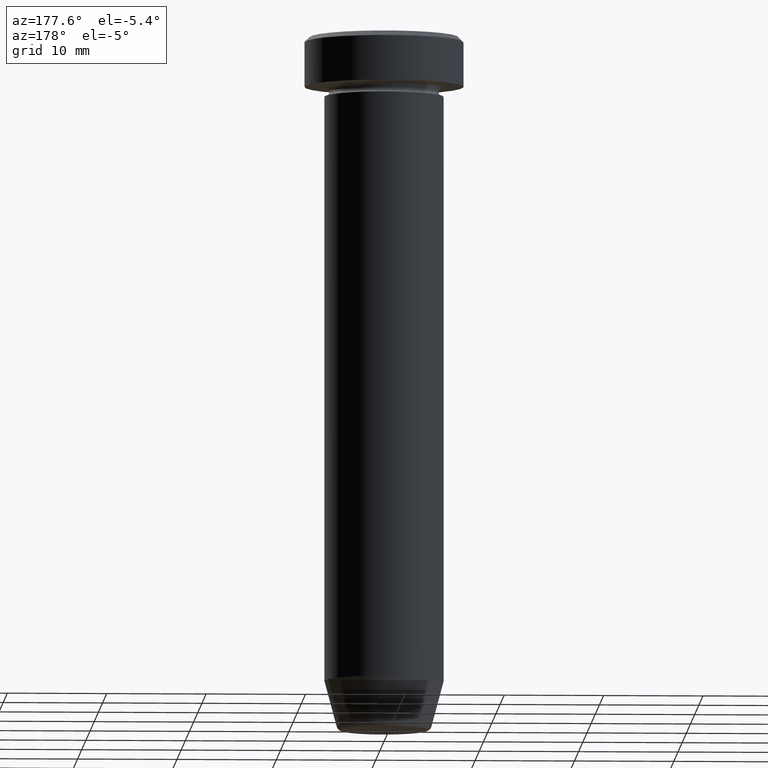
[diagram: clean part render]
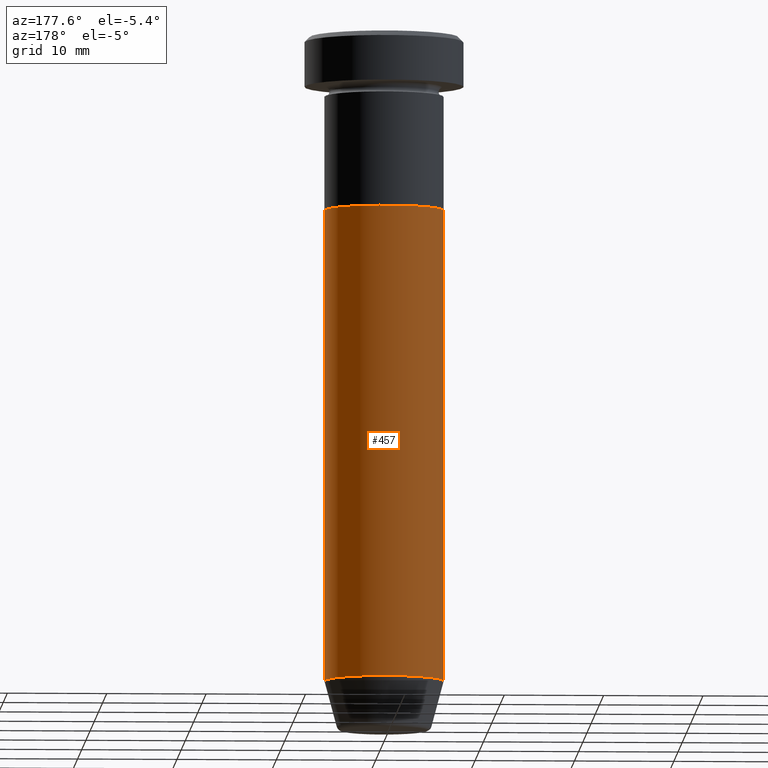
[diagram: same view with one face highlighted and labeled with its STEP entity id]
A machine part, auxiliary view. The second image highlights one B-rep face of the part: STEP entity #457.
In plain terms, the highlighted cylindrical surface (partial cylindrical patch) has radius 6 mm, axis along (-0, -0, 1).
Its self-contained STEP definition (entity closure, byte-faithful):
#25 = CARTESIAN_POINT ( 'NONE',  ( 0.000000000000000000, 0.000000000000000000, -65.00000000000000000 ) ) ;
#43 = DIRECTION ( 'NONE',  ( -0.000000000000000000, -0.000000000000000000, 1.000000000000000000 ) ) ;
#57 = CARTESIAN_POINT ( 'NONE',  ( 6.000000000000000000, 0.000000000000000000, -17.50000000000000000 ) ) ;
#65 = EDGE_CURVE ( 'NONE', #257, #521, #460, .T. ) ;
#69 = CARTESIAN_POINT ( 'NONE',  ( -6.000000000000000000, 7.347880794884119736E-16, 0.000000000000000000 ) ) ;
#107 = DIRECTION ( 'NONE',  ( -0.000000000000000000, -0.000000000000000000, 1.000000000000000000 ) ) ;
#112 = VECTOR ( 'NONE', #249, 1000.000000000000000 ) ;
#114 = DIRECTION ( 'NONE',  ( 1.000000000000000000, 0.000000000000000000, 0.000000000000000000 ) ) ;
#122 = LINE ( 'NONE', #125, #469 ) ;
#125 = CARTESIAN_POINT ( 'NONE',  ( 6.000000000000000000, 0.000000000000000000, 0.000000000000000000 ) ) ;
#142 = CARTESIAN_POINT ( 'NONE',  ( 0.000000000000000000, 0.000000000000000000, 0.000000000000000000 ) ) ;
#181 = FACE_OUTER_BOUND ( 'NONE', #306, .T. ) ;
#217 = DIRECTION ( 'NONE',  ( -0.000000000000000000, -0.000000000000000000, 1.000000000000000000 ) ) ;
#227 = EDGE_CURVE ( 'NONE', #257, #513, #122, .T. ) ;
#249 = DIRECTION ( 'NONE',  ( -0.000000000000000000, -0.000000000000000000, 1.000000000000000000 ) ) ;
#257 = VERTEX_POINT ( 'NONE', #509 ) ;
#258 = CARTESIAN_POINT ( 'NONE',  ( -6.000000000000000000, 7.347880794884119736E-16, -17.50000000000000000 ) ) ;
#266 = VERTEX_POINT ( 'NONE', #258 ) ;
#306 = EDGE_LOOP ( 'NONE', ( #377, #458, #417, #498 ) ) ;
#326 = AXIS2_PLACEMENT_3D ( 'NONE', #25, #107, #114 ) ;
#372 = CYLINDRICAL_SURFACE ( 'NONE', #552, 6.000000000000000000 ) ;
#377 = ORIENTED_EDGE ( 'NONE', *, *, #65, .T. ) ;
#389 = CARTESIAN_POINT ( 'NONE',  ( -6.000000000000000000, 7.347880794884119736E-16, -65.00000000000000000 ) ) ;
#393 = LINE ( 'NONE', #69, #112 ) ;
#416 = DIRECTION ( 'NONE',  ( 1.000000000000000000, 0.000000000000000000, 0.000000000000000000 ) ) ;
#417 = ORIENTED_EDGE ( 'NONE', *, *, #434, .F. ) ;
#434 = EDGE_CURVE ( 'NONE', #513, #266, #512, .T. ) ;
#457 = ADVANCED_FACE ( 'NONE', ( #181 ), #372, .T. ) ;
#458 = ORIENTED_EDGE ( 'NONE', *, *, #588, .T. ) ;
#460 = CIRCLE ( 'NONE', #326, 6.000000000000000000 ) ;
#464 = DIRECTION ( 'NONE',  ( 1.000000000000000000, 0.000000000000000000, 0.000000000000000000 ) ) ;
#469 = VECTOR ( 'NONE', #217, 1000.000000000000000 ) ;
#498 = ORIENTED_EDGE ( 'NONE', *, *, #227, .F. ) ;
#509 = CARTESIAN_POINT ( 'NONE',  ( 6.000000000000000000, 0.000000000000000000, -65.00000000000000000 ) ) ;
#512 = CIRCLE ( 'NONE', #576, 6.000000000000000000 ) ;
#513 = VERTEX_POINT ( 'NONE', #57 ) ;
#520 = CARTESIAN_POINT ( 'NONE',  ( 0.000000000000000000, 0.000000000000000000, -17.50000000000000000 ) ) ;
#521 = VERTEX_POINT ( 'NONE', #389 ) ;
#552 = AXIS2_PLACEMENT_3D ( 'NONE', #142, #560, #464 ) ;
#560 = DIRECTION ( 'NONE',  ( -0.000000000000000000, -0.000000000000000000, 1.000000000000000000 ) ) ;
#576 = AXIS2_PLACEMENT_3D ( 'NONE', #520, #43, #416 ) ;
#588 = EDGE_CURVE ( 'NONE', #521, #266, #393, .T. ) ;